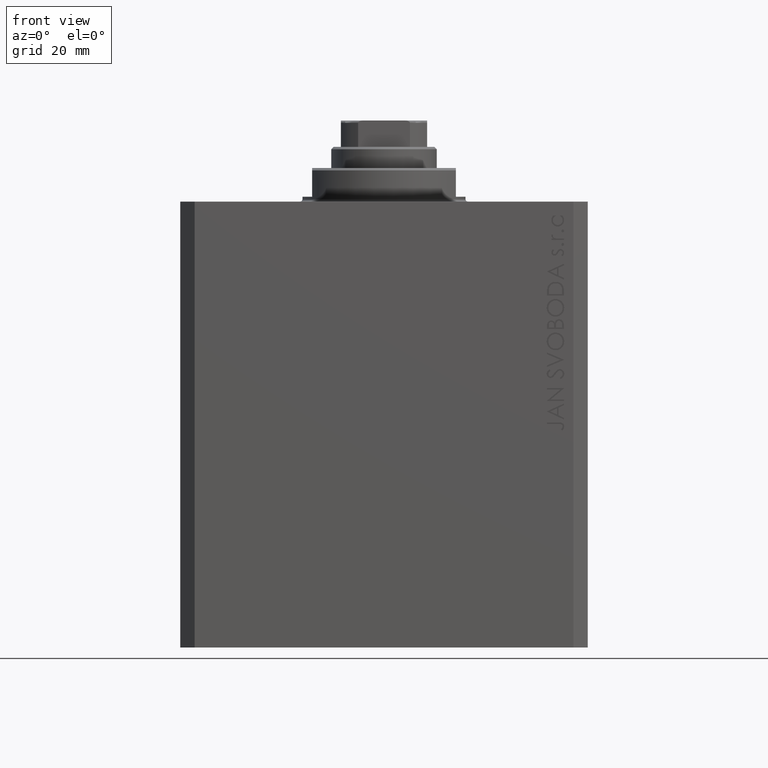
[diagram: clean part render]
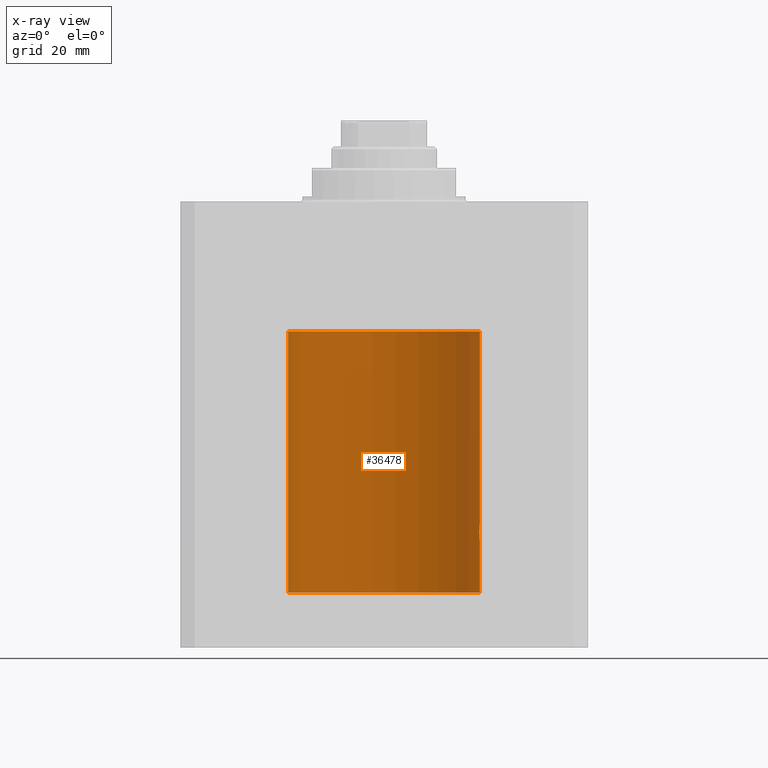
[diagram: x-ray — body ghosted, one internal face saturated and labeled with its STEP entity id]
A machine part, front view, then the same camera in x-ray: the body is ghosted and one INTERNAL B-rep face — a face not visible from any outside direction — is saturated and labeled: STEP entity #36478.
In plain terms, the highlighted cylindrical surface (partial cylindrical patch) has radius 20 mm, axis along (0, 0, 1).
Its self-contained STEP definition (entity closure, byte-faithful):
#648 = CARTESIAN_POINT ( 'NONE',  ( 19.93681418096177183, 1.590194273034202688, -67.78006300821553509 ) ) ;
#1494 = DIRECTION ( 'NONE',  ( 1.000000000000000000, 0.000000000000000000, 0.000000000000000000 ) ) ;
#2465 = EDGE_CURVE ( 'NONE', #39576, #5371, #13888, .T. ) ;
#3265 = EDGE_CURVE ( 'NONE', #5371, #15688, #29310, .T. ) ;
#3786 = CARTESIAN_POINT ( 'NONE',  ( 19.99366205580918887, 0.5195372307044503479, -67.06423906555804137 ) ) ;
#3804 = CARTESIAN_POINT ( 'NONE',  ( 19.98995738555794333, 0.6452086089795033841, -70.89760345360160443 ) ) ;
#4228 = CARTESIAN_POINT ( 'NONE',  ( 19.97511131722831479, 1.003336743019912936, -67.26498565174387068 ) ) ;
#5371 = VERTEX_POINT ( 'NONE', #36616 ) ;
#5524 = EDGE_LOOP ( 'NONE', ( #23778, #42144, #9283, #34422, #37463, #18026, #22775 ) ) ;
#6728 = CARTESIAN_POINT ( 'NONE',  ( 19.90520750556430940, 1.947496194184494378, -69.52455416993456083 ) ) ;
#6745 = B_SPLINE_CURVE_WITH_KNOTS ( 'NONE', 3,
 ( #38322, #35181, #28230, #21279, #6939, #28007, #34963, #648, #37881, #41451, #28462, #4228, #7147, #20827, #3786, #24211, #11173, #30950 ),
 .UNSPECIFIED., .F., .F.,
 ( 4, 2, 2, 2, 2, 2, 2, 2, 4 ),
 ( 0.003129134698348759892, 0.003520095305221480463, 0.003911055912094201469, 0.004302016518966922040, 0.004692977125839642612, 0.005083937732712363183, 0.005474898339585083755, 0.005865858946457804327, 0.006256819553330524898 ),
 .UNSPECIFIED. ) ;
#6939 = CARTESIAN_POINT ( 'NONE',  ( 19.90980722176544049, 1.897923463361389285, -68.35574535366808391 ) ) ;
#6997 = DIRECTION ( 'NONE',  ( -0.000000000000000000, -0.000000000000000000, 1.000000000000000000 ) ) ;
#7147 = CARTESIAN_POINT ( 'NONE',  ( 19.98071536551674754, 0.8863972468204365240, -67.20236805399484581 ) ) ;
#8622 = AXIS2_PLACEMENT_3D ( 'NONE', #14945, #35595, #1494 ) ;
#9283 = ORIENTED_EDGE ( 'NONE', *, *, #2465, .T. ) ;
#9871 = CARTESIAN_POINT ( 'NONE',  ( 19.97516523393783316, 1.002309963754523858, -70.73564471556110789 ) ) ;
#11173 = CARTESIAN_POINT ( 'NONE',  ( 20.00000000000000000, 0.1305404422160218736, -66.99999999999998579 ) ) ;
#12479 = VERTEX_POINT ( 'NONE', #15804 ) ;
#13458 = CARTESIAN_POINT ( 'NONE',  ( 19.92371056170336630, 1.748080295468898537, -70.00603865937250703 ) ) ;
#13644 = CYLINDRICAL_SURFACE ( 'NONE', #33283, 20.00000000000000000 ) ;
#13858 = CIRCLE ( 'NONE', #28929, 20.00000000000000000 ) ;
#13888 = LINE ( 'NONE', #30524, #26966 ) ;
#14945 = CARTESIAN_POINT ( 'NONE',  ( 0.000000000000000000, 0.000000000000000000, -27.10000000000000142 ) ) ;
#15266 = VERTEX_POINT ( 'NONE', #41228 ) ;
#15688 = VERTEX_POINT ( 'NONE', #34605 ) ;
#15722 = CARTESIAN_POINT ( 'NONE',  ( -20.00000000000000000, 2.449293598294706513E-15, -81.60000000000000853 ) ) ;
#15804 = CARTESIAN_POINT ( 'NONE',  ( 20.00000000000000000, 0.000000000000000000, -27.10000000000000142 ) ) ;
#15939 = DIRECTION ( 'NONE',  ( 1.000000000000000000, 0.000000000000000000, 0.000000000000000000 ) ) ;
#16485 = CIRCLE ( 'NONE', #8622, 20.00000000000000000 ) ;
#17257 = CARTESIAN_POINT ( 'NONE',  ( 20.00000000000000000, 0.000000000000000000, -71.00000000000001421 ) ) ;
#18026 = ORIENTED_EDGE ( 'NONE', *, *, #34762, .T. ) ;
#20188 = CARTESIAN_POINT ( 'NONE',  ( 19.99868904672146996, 0.2623009746877838499, -70.98700898509812873 ) ) ;
#20439 = EDGE_CURVE ( 'NONE', #12479, #35435, #16485, .T. ) ;
#20607 = DIRECTION ( 'NONE',  ( 1.000000000000000000, 0.000000000000000000, 0.000000000000000000 ) ) ;
#20827 = CARTESIAN_POINT ( 'NONE',  ( 19.98998987637478209, 0.6441982143731844745, -67.10205654639887030 ) ) ;
#20853 = CARTESIAN_POINT ( 'NONE',  ( 19.98066923111604964, 0.8874387315505222196, -70.79712145220240416 ) ) ;
#21279 = CARTESIAN_POINT ( 'NONE',  ( 19.90611763847108762, 1.935753518394741635, -68.48042243434849752 ) ) ;
#22775 = ORIENTED_EDGE ( 'NONE', *, *, #20439, .T. ) ;
#23342 = DIRECTION ( 'NONE',  ( 0.000000000000000000, 0.000000000000000000, 1.000000000000000000 ) ) ;
#23778 = ORIENTED_EDGE ( 'NONE', *, *, #38774, .F. ) ;
#23979 = CARTESIAN_POINT ( 'NONE',  ( 0.000000000000000000, 0.000000000000000000, -81.60000000000000853 ) ) ;
#24010 = CARTESIAN_POINT ( 'NONE',  ( 19.95643710845398289, 1.322557776536546825, -70.50593841146684326 ) ) ;
#24012 = DIRECTION ( 'NONE',  ( -0.000000000000000000, -0.000000000000000000, 1.000000000000000000 ) ) ;
#24211 = CARTESIAN_POINT ( 'NONE',  ( 19.99867993937906618, 0.2631387813862826053, -67.01308095003093968 ) ) ;
#24224 = DIRECTION ( 'NONE',  ( -0.000000000000000000, -0.000000000000000000, 1.000000000000000000 ) ) ;
#24230 = CARTESIAN_POINT ( 'NONE',  ( 20.00000000000000000, 0.1322642052205943719, -71.00000000000004263 ) ) ;
#24749 = VECTOR ( 'NONE', #6997, 1000.000000000000000 ) ;
#26894 = FACE_OUTER_BOUND ( 'NONE', #5524, .T. ) ;
#26925 = CARTESIAN_POINT ( 'NONE',  ( 0.000000000000000000, 0.000000000000000000, -81.60000000000000853 ) ) ;
#26966 = VECTOR ( 'NONE', #24224, 1000.000000000000000 ) ;
#27592 = CARTESIAN_POINT ( 'NONE',  ( 19.99369727434158861, 0.5181068333511500423, -70.93612288282996303 ) ) ;
#28007 = CARTESIAN_POINT ( 'NONE',  ( 19.91911433329477177, 1.797615436563606561, -68.11357106075777779 ) ) ;
#28230 = CARTESIAN_POINT ( 'NONE',  ( 19.90107458412648711, 1.986930174329755161, -68.73692013941790435 ) ) ;
#28297 = CARTESIAN_POINT ( 'NONE',  ( -20.00000000000000000, 2.449293598294706513E-15, -81.60000000000000853 ) ) ;
#28462 = CARTESIAN_POINT ( 'NONE',  ( 19.96305842179988588, 1.219858681717333138, -67.40974712539563996 ) ) ;
#28929 = AXIS2_PLACEMENT_3D ( 'NONE', #26925, #23342, #15939 ) ;
#29310 = B_SPLINE_CURVE_WITH_KNOTS ( 'NONE', 3,
 ( #17257, #24230, #20188, #27592, #3804, #20853, #9871, #37458, #24010, #30971, #13458, #6728, #30534, #41257 ),
 .UNSPECIFIED., .F., .F.,
 ( 4, 2, 2, 2, 2, 2, 4 ),
 ( 0.000000000000000000, 0.0003911418372936024675, 0.0007822836745872047181, 0.001173425511880806914, 0.001564567349174409219, 0.002346851023761584339, 0.003129134698348759892 ),
 .UNSPECIFIED. ) ;
#29665 = VECTOR ( 'NONE', #24012, 1000.000000000000000 ) ;
#29970 = EDGE_CURVE ( 'NONE', #15688, #15266, #6745, .T. ) ;
#30524 = CARTESIAN_POINT ( 'NONE',  ( 20.00000000000000000, 0.000000000000000000, -81.60000000000000853 ) ) ;
#30534 = CARTESIAN_POINT ( 'NONE',  ( 19.89974874213236333, 2.000000000000336176, -69.26114132155831271 ) ) ;
#30544 = CARTESIAN_POINT ( 'NONE',  ( -20.00000000000000000, 2.449293598294706513E-15, -27.10000000000000142 ) ) ;
#30950 = CARTESIAN_POINT ( 'NONE',  ( 20.00000000000000000, -1.553109350199128042E-23, -67.00000000000000000 ) ) ;
#30971 = CARTESIAN_POINT ( 'NONE',  ( 19.93682487288204896, 1.599118048130817593, -70.22917035181221479 ) ) ;
#31667 = LINE ( 'NONE', #28297, #24749 ) ;
#33181 = VERTEX_POINT ( 'NONE', #15722 ) ;
#33203 = EDGE_CURVE ( 'NONE', #39576, #33181, #13858, .T. ) ;
#33283 = AXIS2_PLACEMENT_3D ( 'NONE', #23979, #40563, #20607 ) ;
#34422 = ORIENTED_EDGE ( 'NONE', *, *, #3265, .T. ) ;
#34605 = CARTESIAN_POINT ( 'NONE',  ( 19.89974874213236333, 2.000000000000336620, -69.00000000000000000 ) ) ;
#34762 = EDGE_CURVE ( 'NONE', #15266, #12479, #37242, .T. ) ;
#34963 = CARTESIAN_POINT ( 'NONE',  ( 19.92473605353366040, 1.734984354167257159, -67.99660905888589468 ) ) ;
#35181 = CARTESIAN_POINT ( 'NONE',  ( 19.89974874213236689, 2.000000000000336620, -68.86948983741757502 ) ) ;
#35435 = VERTEX_POINT ( 'NONE', #30544 ) ;
#35595 = DIRECTION ( 'NONE',  ( 0.000000000000000000, 0.000000000000000000, 1.000000000000000000 ) ) ;
#36478 = ADVANCED_FACE ( 'NONE', ( #26894 ), #13644, .F. ) ;
#36616 = CARTESIAN_POINT ( 'NONE',  ( 20.00000000000000000, 0.000000000000000000, -71.00000000000001421 ) ) ;
#36964 = CARTESIAN_POINT ( 'NONE',  ( 20.00000000000000000, 0.000000000000000000, -81.60000000000000853 ) ) ;
#37242 = LINE ( 'NONE', #40600, #29665 ) ;
#37458 = CARTESIAN_POINT ( 'NONE',  ( 19.96307037068151402, 1.219701915132744396, -70.59041349350364669 ) ) ;
#37463 = ORIENTED_EDGE ( 'NONE', *, *, #29970, .T. ) ;
#37881 = CARTESIAN_POINT ( 'NONE',  ( 19.94332236886613074, 1.507531922383789524, -67.67909949904073130 ) ) ;
#38322 = CARTESIAN_POINT ( 'NONE',  ( 19.89974874213236333, 2.000000000000336620, -69.00000000000000000 ) ) ;
#38774 = EDGE_CURVE ( 'NONE', #33181, #35435, #31667, .T. ) ;
#39576 = VERTEX_POINT ( 'NONE', #36964 ) ;
#40563 = DIRECTION ( 'NONE',  ( -0.000000000000000000, -0.000000000000000000, 1.000000000000000000 ) ) ;
#40600 = CARTESIAN_POINT ( 'NONE',  ( 20.00000000000000000, 0.000000000000000000, -81.60000000000000853 ) ) ;
#41228 = CARTESIAN_POINT ( 'NONE',  ( 20.00000000000000000, -1.553109350199128042E-23, -67.00000000000000000 ) ) ;
#41257 = CARTESIAN_POINT ( 'NONE',  ( 19.89974874213236333, 2.000000000000336620, -69.00000000000000000 ) ) ;
#41451 = CARTESIAN_POINT ( 'NONE',  ( 19.95655800881796083, 1.320814917468111194, -67.49239309359697359 ) ) ;
#42144 = ORIENTED_EDGE ( 'NONE', *, *, #33203, .F. ) ;